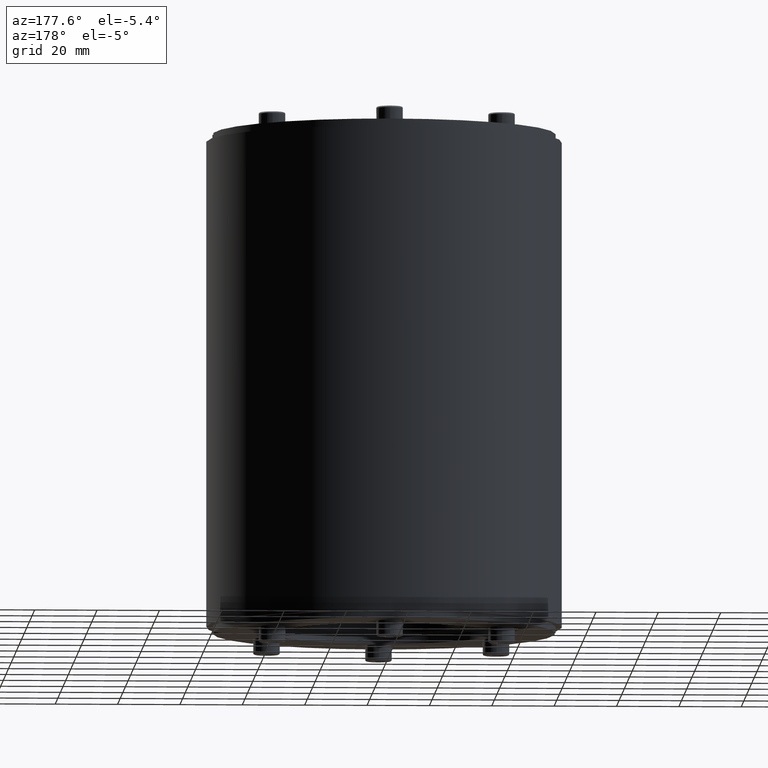
[diagram: clean part render]
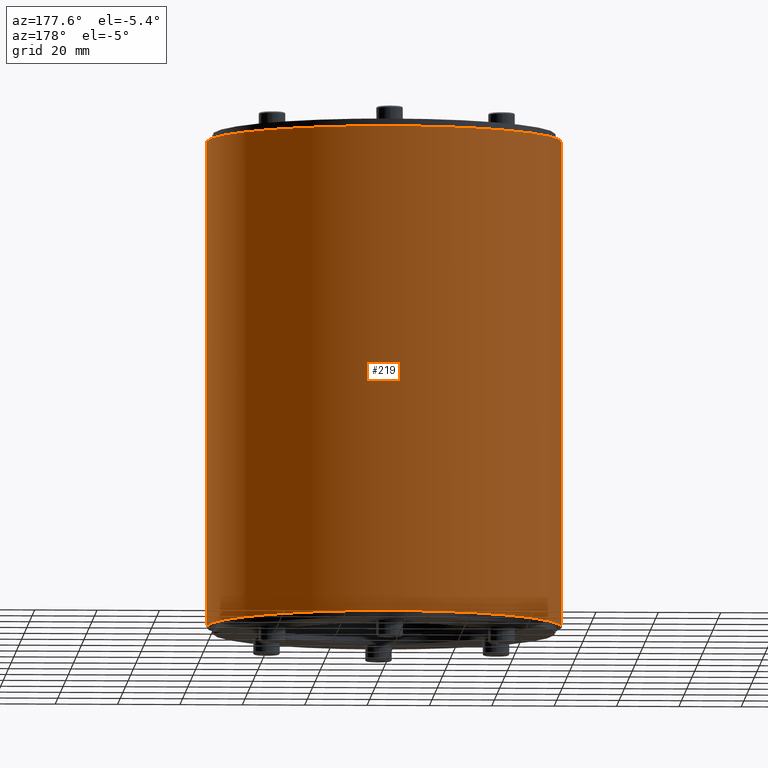
[diagram: same view with one face highlighted and labeled with its STEP entity id]
A machine part, auxiliary view. The second image highlights one B-rep face of the part: STEP entity #219.
In plain terms, the highlighted cylindrical surface (partial cylindrical patch) has radius 57 mm, axis along (0, 0, 1).
Its self-contained STEP definition (entity closure, byte-faithful):
#178=CARTESIAN_POINT('',(0.0,0.0,-78.0));
#179=DIRECTION('',(0.0,0.0,1.0));
#180=DIRECTION('',(1.0,0.0,0.0));
#181=AXIS2_PLACEMENT_3D('',#178,#179,#180);
#182=CYLINDRICAL_SURFACE('',#181,57.0);
#183=CARTESIAN_POINT('',(57.0,0.0,-78.0));
#184=VERTEX_POINT('',#183);
#185=CARTESIAN_POINT('',(57.0,0.0,78.0));
#186=VERTEX_POINT('',#185);
#187=CARTESIAN_POINT('',(57.0,0.0,-78.0));
#188=DIRECTION('',(0.0,0.0,1.0));
#189=VECTOR('',#188,156.0);
#190=LINE('',#187,#189);
#191=EDGE_CURVE('',#184,#186,#190,.T.);
#192=ORIENTED_EDGE('',*,*,#191,.F.);
#193=CARTESIAN_POINT('',(-57.0,6.980256E-015,-78.0));
#194=VERTEX_POINT('',#193);
#195=CARTESIAN_POINT('',(0.0,0.0,-78.0));
#196=DIRECTION('',(0.0,0.0,1.0));
#197=DIRECTION('',(1.0,0.0,0.0));
#198=AXIS2_PLACEMENT_3D('',#195,#196,#197);
#199=CIRCLE('',#198,57.0);
#200=EDGE_CURVE('',#184,#194,#199,.T.);
#201=ORIENTED_EDGE('',*,*,#200,.T.);
#202=CARTESIAN_POINT('',(-57.0,6.980256E-015,78.0));
#203=VERTEX_POINT('',#202);
#204=CARTESIAN_POINT('',(-57.0,6.980256E-015,78.0));
#205=DIRECTION('',(0.0,0.0,-1.0));
#206=VECTOR('',#205,156.0);
#207=LINE('',#204,#206);
#208=EDGE_CURVE('',#203,#194,#207,.T.);
#209=ORIENTED_EDGE('',*,*,#208,.F.);
#210=CARTESIAN_POINT('',(0.0,0.0,78.0));
#211=DIRECTION('',(0.0,0.0,-1.0));
#212=DIRECTION('',(1.0,0.0,0.0));
#213=AXIS2_PLACEMENT_3D('',#210,#211,#212);
#214=CIRCLE('',#213,57.0);
#215=EDGE_CURVE('',#203,#186,#214,.T.);
#216=ORIENTED_EDGE('',*,*,#215,.T.);
#217=EDGE_LOOP('',(#192,#201,#209,#216));
#218=FACE_OUTER_BOUND('',#217,.T.);
#219=ADVANCED_FACE('',(#218),#182,.T.);